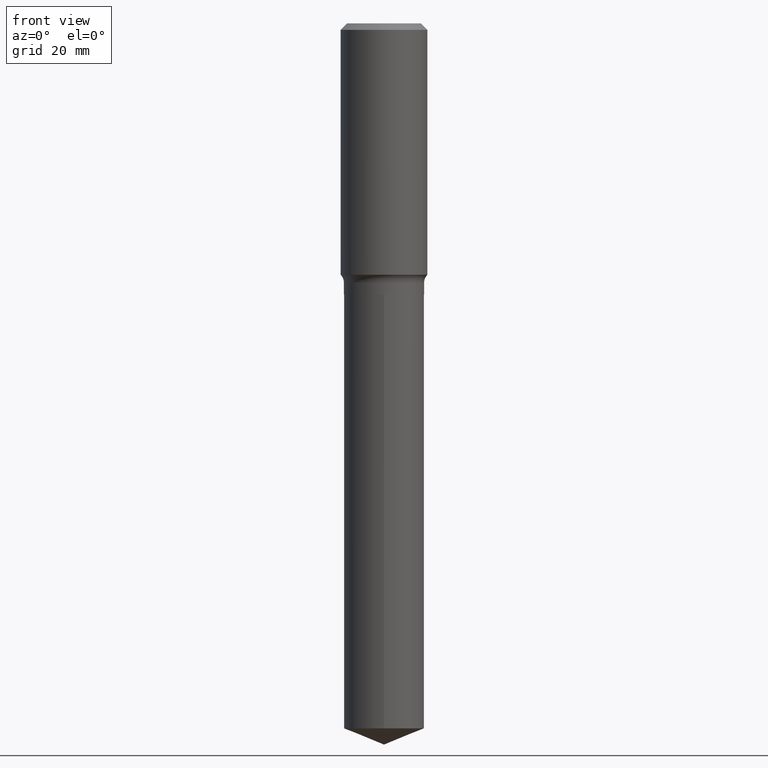
[diagram: clean part render]
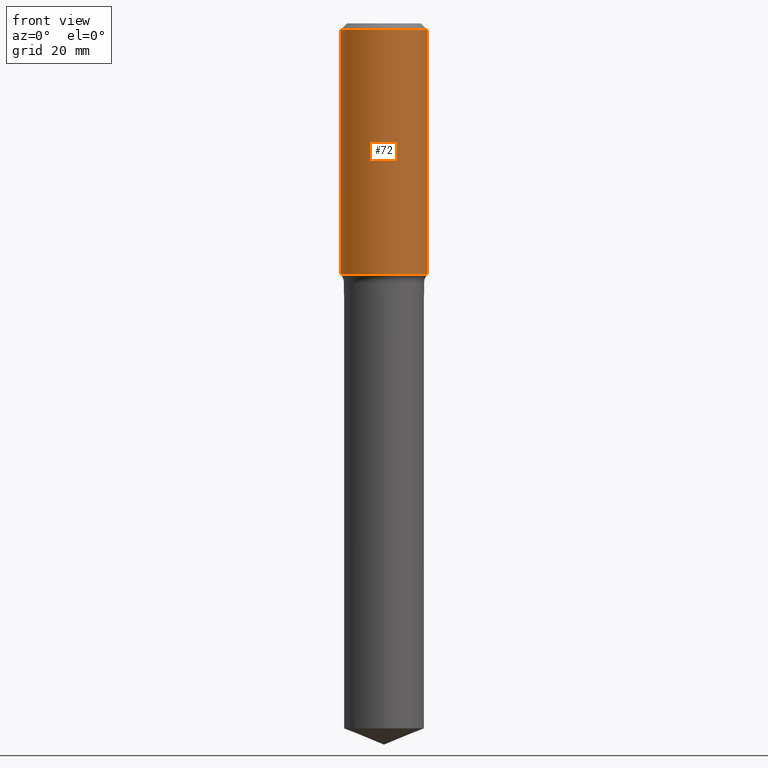
[diagram: same view with one face highlighted and labeled with its STEP entity id]
A machine part, front view. The second image highlights one B-rep face of the part: STEP entity #72.
In plain terms, the highlighted cylindrical surface (partial cylindrical patch) has radius 7.9997 mm, axis along (-0, 0, 1).
Its self-contained STEP definition (entity closure, byte-faithful):
#20 = DIRECTION ( 'NONE',  ( -2.445468806185136877E-29, 3.491481338843145188E-15, 1.000000000000000000 ) ) ;
#28 = DIRECTION ( 'NONE',  ( 1.000000000000000000, -6.982962677686265922E-15, 4.876176775795935232E-29 ) ) ;
#40 = CIRCLE ( 'NONE', #345, 0.3149500000000000077 ) ;
#51 = EDGE_CURVE ( 'NONE', #275, #142, #349, .T. ) ;
#57 = VERTEX_POINT ( 'NONE', #341 ) ;
#65 = CARTESIAN_POINT ( 'NONE',  ( 0.3149500000000001743, -2.199284095337290660E-15, 1.535751875536930690E-29 ) ) ;
#72 = ADVANCED_FACE ( 'NONE', ( #259 ), #492, .T. ) ;
#83 = CARTESIAN_POINT ( 'NONE',  ( 1.155300600762020273E-30, -1.649463071502983032E-16, -0.04724250000000029120 ) ) ;
#112 = VECTOR ( 'NONE', #333, 39.37007874015748143 ) ;
#115 = DIRECTION ( 'NONE',  ( -2.445468806185136597E-29, 3.491481338843145583E-15, 1.000000000000000000 ) ) ;
#118 = AXIS2_PLACEMENT_3D ( 'NONE', #146, #182, #28 ) ;
#121 = EDGE_CURVE ( 'NONE', #269, #57, #215, .T. ) ;
#142 = VERTEX_POINT ( 'NONE', #177 ) ;
#146 = CARTESIAN_POINT ( 'NONE',  ( 0.000000000000000000, 0.000000000000000000, 0.000000000000000000 ) ) ;
#149 = CARTESIAN_POINT ( 'NONE',  ( -0.3149500000000001743, 2.237854346276436774E-15, -1.549218606675783237E-29 ) ) ;
#166 = ORIENTED_EDGE ( 'NONE', *, *, #51, .T. ) ;
#172 = ORIENTED_EDGE ( 'NONE', *, *, #405, .F. ) ;
#177 = CARTESIAN_POINT ( 'NONE',  ( 0.3149500000000000077, -2.364230402487588149E-15, -0.04724250000000029120 ) ) ;
#182 = DIRECTION ( 'NONE',  ( -2.445468806185136597E-29, 3.491481338843145583E-15, 1.000000000000000000 ) ) ;
#204 = VECTOR ( 'NONE', #20, 39.37007874015748143 ) ;
#215 = LINE ( 'NONE', #149, #112 ) ;
#217 = ORIENTED_EDGE ( 'NONE', *, *, #285, .T. ) ;
#228 = CIRCLE ( 'NONE', #450, 0.3149500000000002298 ) ;
#244 = DIRECTION ( 'NONE',  ( 1.000000000000000000, -6.982962677686268288E-15, 0.000000000000000000 ) ) ;
#259 = FACE_OUTER_BOUND ( 'NONE', #318, .T. ) ;
#266 = DIRECTION ( 'NONE',  ( 1.000000000000000000, -6.982962677686266711E-15, 0.000000000000000000 ) ) ;
#269 = VERTEX_POINT ( 'NONE', #401 ) ;
#275 = VERTEX_POINT ( 'NONE', #326 ) ;
#278 = CARTESIAN_POINT ( 'NONE',  ( 4.462250649209089674E-29, -6.370911308109631096E-15, -1.824701520593131843 ) ) ;
#285 = EDGE_CURVE ( 'NONE', #269, #275, #228, .T. ) ;
#318 = EDGE_LOOP ( 'NONE', ( #445, #217, #166, #172 ) ) ;
#326 = CARTESIAN_POINT ( 'NONE',  ( 0.3149500000000002853, -8.570195403446922545E-15, -1.824701520593131843 ) ) ;
#333 = DIRECTION ( 'NONE',  ( -2.445468806185136877E-29, 3.491481338843145188E-15, 1.000000000000000000 ) ) ;
#341 = CARTESIAN_POINT ( 'NONE',  ( -0.3149500000000000077, -1.030074461353527914E-15, -0.04724250000000029120 ) ) ;
#345 = AXIS2_PLACEMENT_3D ( 'NONE', #83, #115, #266 ) ;
#349 = LINE ( 'NONE', #65, #204 ) ;
#401 = CARTESIAN_POINT ( 'NONE',  ( -0.3149500000000002853, -4.133056961833193534E-15, -1.824701520593131843 ) ) ;
#405 = EDGE_CURVE ( 'NONE', #57, #142, #40, .T. ) ;
#445 = ORIENTED_EDGE ( 'NONE', *, *, #121, .F. ) ;
#450 = AXIS2_PLACEMENT_3D ( 'NONE', #278, #481, #244 ) ;
#481 = DIRECTION ( 'NONE',  ( -2.445468806185136597E-29, 3.491481338843145583E-15, 1.000000000000000000 ) ) ;
#492 = CYLINDRICAL_SURFACE ( 'NONE', #118, 0.3149500000000001743 ) ;